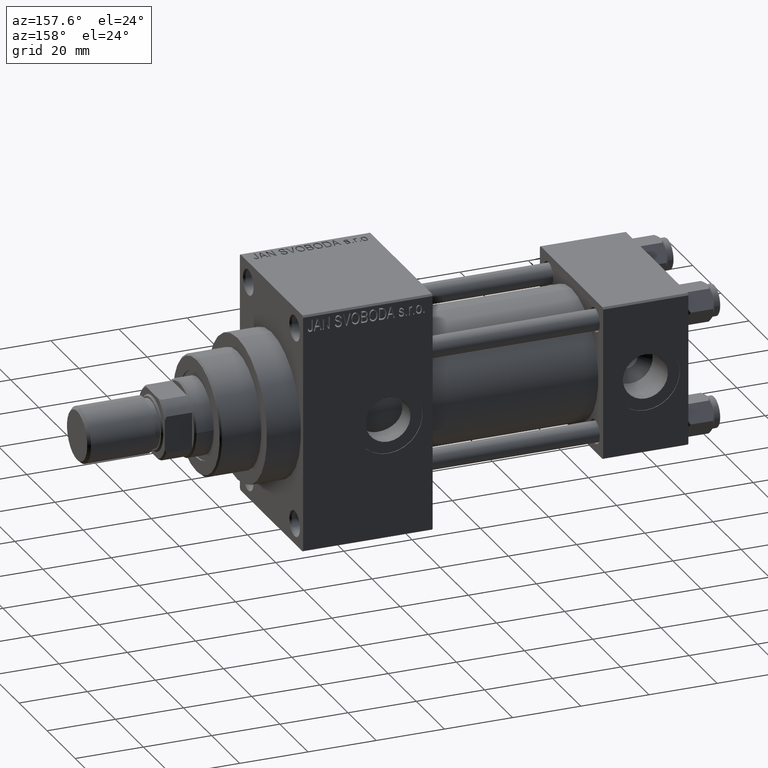
[diagram: clean part render]
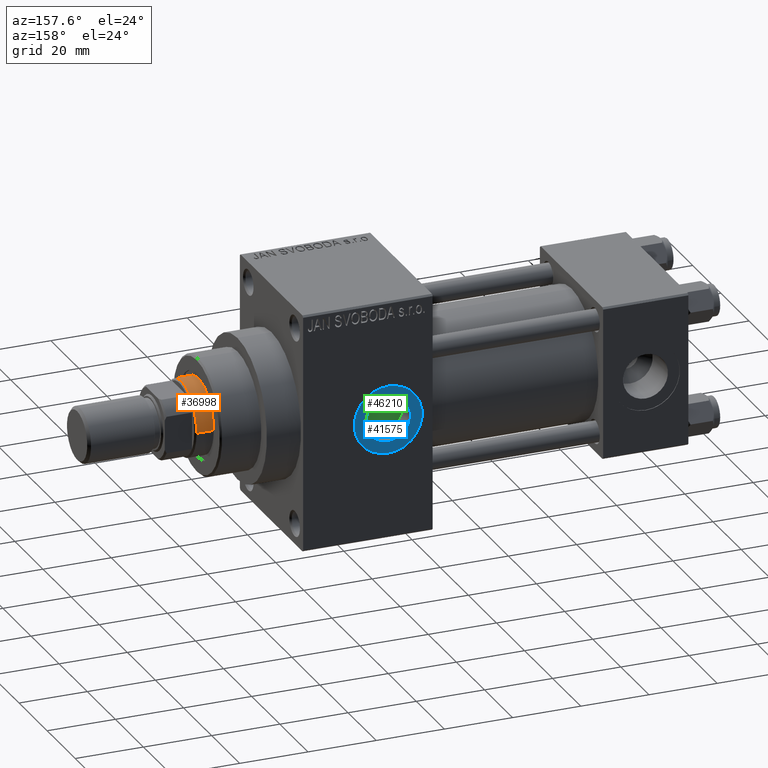
[diagram: same view with three faces highlighted in distinct colors, each labeled with its STEP entity id]
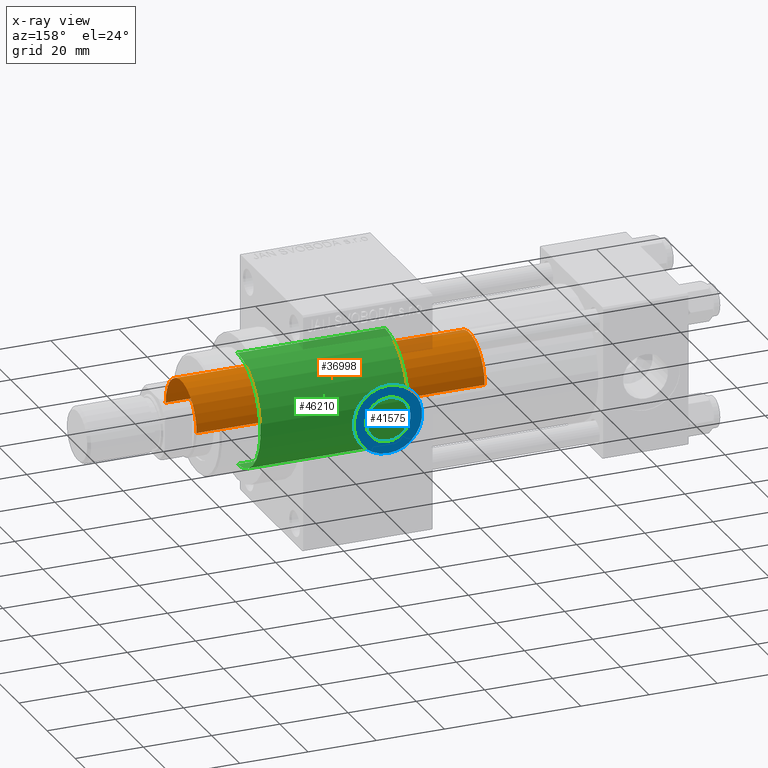
[diagram: x-ray of the same camera — body ghosted, the three highlighted faces saturated]
A machine part, auxiliary view with three faces highlighted in distinct colors.
The next image is the same camera in x-ray (body ghosted, the three faces saturated) — at least one of them is partly hidden behind the body in this view.
Their STEP definitions:

[orange] entity #36998 — the highlighted cylindrical surface (partial cylindrical patch) has radius 11 mm, axis along (-1, 0, 0).
#1453 = ORIENTED_EDGE ( 'NONE', *, *, #26147, .F. ) ;
#2389 = CARTESIAN_POINT ( 'NONE',  ( 0.000000000000000000, 0.000000000000000000, 115.0000000000000000 ) ) ;
#6100 = EDGE_CURVE ( 'NONE', #15013, #28930, #34857, .T. ) ;
#8218 = DIRECTION ( 'NONE',  ( 1.000000000000000000, 0.000000000000000000, 0.000000000000000000 ) ) ;
#9091 = CIRCLE ( 'NONE', #29094, 11.00000000000000000 ) ;
#9444 = VERTEX_POINT ( 'NONE', #28749 ) ;
#12684 = CARTESIAN_POINT ( 'NONE',  ( 11.00000000000000000, 1.347111479062088405E-15, 115.0000000000000000 ) ) ;
#13531 = AXIS2_PLACEMENT_3D ( 'NONE', #2389, #46916, #46676 ) ;
#15013 = VERTEX_POINT ( 'NONE', #41932 ) ;
#16005 = ORIENTED_EDGE ( 'NONE', *, *, #30554, .T. ) ;
#16176 = CIRCLE ( 'NONE', #23859, 11.00000000000000000 ) ;
#20673 = DIRECTION ( 'NONE',  ( 1.000000000000000000, 0.000000000000000000, 0.000000000000000000 ) ) ;
#22670 = DIRECTION ( 'NONE',  ( 0.000000000000000000, 0.000000000000000000, 1.000000000000000000 ) ) ;
#22859 = ORIENTED_EDGE ( 'NONE', *, *, #46298, .T. ) ;
#23859 = AXIS2_PLACEMENT_3D ( 'NONE', #33488, #22670, #8218 ) ;
#26147 = EDGE_CURVE ( 'NONE', #9444, #40365, #45904, .T. ) ;
#26273 = EDGE_LOOP ( 'NONE', ( #1453, #22859, #46473, #16005 ) ) ;
#27353 = DIRECTION ( 'NONE',  ( -0.000000000000000000, -0.000000000000000000, -1.000000000000000000 ) ) ;
#27386 = DIRECTION ( 'NONE',  ( -0.000000000000000000, -0.000000000000000000, -1.000000000000000000 ) ) ;
#27906 = CYLINDRICAL_SURFACE ( 'NONE', #13531, 11.00000000000000000 ) ;
#28749 = CARTESIAN_POINT ( 'NONE',  ( 11.00000000000000000, 1.347111479062088405E-15, 114.5000000000000142 ) ) ;
#28930 = VERTEX_POINT ( 'NONE', #39931 ) ;
#29094 = AXIS2_PLACEMENT_3D ( 'NONE', #30999, #38945, #20673 ) ;
#30554 = EDGE_CURVE ( 'NONE', #28930, #40365, #16176, .T. ) ;
#30999 = CARTESIAN_POINT ( 'NONE',  ( 0.000000000000000000, 0.000000000000000000, 114.5000000000000142 ) ) ;
#31747 = FACE_OUTER_BOUND ( 'NONE', #26273, .T. ) ;
#33488 = CARTESIAN_POINT ( 'NONE',  ( 0.000000000000000000, 0.000000000000000000, 30.00000000000000000 ) ) ;
#34472 = VECTOR ( 'NONE', #27353, 1000.000000000000000 ) ;
#34857 = LINE ( 'NONE', #46179, #38120 ) ;
#36998 = ADVANCED_FACE ( 'NONE', ( #31747 ), #27906, .T. ) ;
#38120 = VECTOR ( 'NONE', #27386, 1000.000000000000000 ) ;
#38945 = DIRECTION ( 'NONE',  ( 0.000000000000000000, 0.000000000000000000, -1.000000000000000000 ) ) ;
#39931 = CARTESIAN_POINT ( 'NONE',  ( -11.00000000000000000, 0.000000000000000000, 30.00000000000000000 ) ) ;
#40365 = VERTEX_POINT ( 'NONE', #45590 ) ;
#41932 = CARTESIAN_POINT ( 'NONE',  ( -11.00000000000000000, 0.000000000000000000, 114.5000000000000142 ) ) ;
#45590 = CARTESIAN_POINT ( 'NONE',  ( 11.00000000000000000, 1.347111479062088405E-15, 30.00000000000000000 ) ) ;
#45904 = LINE ( 'NONE', #12684, #34472 ) ;
#46179 = CARTESIAN_POINT ( 'NONE',  ( -11.00000000000000000, 0.000000000000000000, 115.0000000000000000 ) ) ;
#46298 = EDGE_CURVE ( 'NONE', #9444, #15013, #9091, .T. ) ;
#46473 = ORIENTED_EDGE ( 'NONE', *, *, #6100, .T. ) ;
#46676 = DIRECTION ( 'NONE',  ( -1.000000000000000000, 0.000000000000000000, 0.000000000000000000 ) ) ;
#46916 = DIRECTION ( 'NONE',  ( -0.000000000000000000, -0.000000000000000000, -1.000000000000000000 ) ) ;

[blue] entity #41575 — the highlighted planar face has unit normal (0, 1, 0).
#67 = EDGE_CURVE ( 'NONE', #35409, #16734, #8065, .T. ) ;
#2031 = ORIENTED_EDGE ( 'NONE', *, *, #28156, .T. ) ;
#3675 = ORIENTED_EDGE ( 'NONE', *, *, #15401, .F. ) ;
#8065 = CIRCLE ( 'NONE', #32663, 6.580000000000002736 ) ;
#8118 = ORIENTED_EDGE ( 'NONE', *, *, #46602, .T. ) ;
#9870 = CARTESIAN_POINT ( 'NONE',  ( 88.00000000000001421, 22.29999999999999716, 0.000000000000000000 ) ) ;
#10203 = DIRECTION ( 'NONE',  ( 0.000000000000000000, 0.000000000000000000, 1.000000000000000000 ) ) ;
#11079 = CARTESIAN_POINT ( 'NONE',  ( 88.00000000000001421, 22.29999999999999716, 9.999999999999994671 ) ) ;
#11175 = ORIENTED_EDGE ( 'NONE', *, *, #67, .F. ) ;
#12188 = DIRECTION ( 'NONE',  ( 0.000000000000000000, 0.000000000000000000, 1.000000000000000000 ) ) ;
#15401 = EDGE_CURVE ( 'NONE', #16734, #35409, #44983, .T. ) ;
#16734 = VERTEX_POINT ( 'NONE', #41282 ) ;
#17575 = FACE_OUTER_BOUND ( 'NONE', #19482, .T. ) ;
#19244 = VERTEX_POINT ( 'NONE', #32703 ) ;
#19482 = EDGE_LOOP ( 'NONE', ( #2031, #8118 ) ) ;
#23692 = VERTEX_POINT ( 'NONE', #11079 ) ;
#24315 = FACE_BOUND ( 'NONE', #28889, .T. ) ;
#28156 = EDGE_CURVE ( 'NONE', #23692, #19244, #44530, .T. ) ;
#28254 = DIRECTION ( 'NONE',  ( 0.000000000000000000, 1.000000000000000000, 0.000000000000000000 ) ) ;
#28889 = EDGE_LOOP ( 'NONE', ( #11175, #3675 ) ) ;
#29610 = AXIS2_PLACEMENT_3D ( 'NONE', #31187, #34805, #38667 ) ;
#30589 = AXIS2_PLACEMENT_3D ( 'NONE', #9870, #42601, #47156 ) ;
#31187 = CARTESIAN_POINT ( 'NONE',  ( 88.00000000000001421, 22.29999999999999716, 0.000000000000000000 ) ) ;
#32663 = AXIS2_PLACEMENT_3D ( 'NONE', #47024, #40497, #44109 ) ;
#32703 = CARTESIAN_POINT ( 'NONE',  ( 88.00000000000001421, 22.29999999999999716, -9.999999999999994671 ) ) ;
#32957 = CIRCLE ( 'NONE', #41423, 9.999999999999994671 ) ;
#34075 = DIRECTION ( 'NONE',  ( 0.000000000000000000, 1.000000000000000000, 0.000000000000000000 ) ) ;
#34805 = DIRECTION ( 'NONE',  ( 0.000000000000000000, 1.000000000000000000, 0.000000000000000000 ) ) ;
#35378 = PLANE ( 'NONE',  #30589 ) ;
#35409 = VERTEX_POINT ( 'NONE', #38940 ) ;
#35709 = CARTESIAN_POINT ( 'NONE',  ( 88.00000000000001421, 22.29999999999999716, 0.000000000000000000 ) ) ;
#38667 = DIRECTION ( 'NONE',  ( 0.000000000000000000, 0.000000000000000000, 1.000000000000000000 ) ) ;
#38940 = CARTESIAN_POINT ( 'NONE',  ( 88.00000000000001421, 22.29999999999999716, 6.580000000000002736 ) ) ;
#40497 = DIRECTION ( 'NONE',  ( 0.000000000000000000, 1.000000000000000000, 0.000000000000000000 ) ) ;
#41282 = CARTESIAN_POINT ( 'NONE',  ( 88.00000000000001421, 22.29999999999999716, -6.580000000000002736 ) ) ;
#41423 = AXIS2_PLACEMENT_3D ( 'NONE', #45629, #34075, #12188 ) ;
#41575 = ADVANCED_FACE ( 'NONE', ( #24315, #17575 ), #35378, .T. ) ;
#42601 = DIRECTION ( 'NONE',  ( 0.000000000000000000, 1.000000000000000000, 0.000000000000000000 ) ) ;
#44109 = DIRECTION ( 'NONE',  ( 0.000000000000000000, 0.000000000000000000, 1.000000000000000000 ) ) ;
#44530 = CIRCLE ( 'NONE', #46065, 9.999999999999994671 ) ;
#44983 = CIRCLE ( 'NONE', #29610, 6.580000000000002736 ) ;
#45629 = CARTESIAN_POINT ( 'NONE',  ( 88.00000000000001421, 22.29999999999999716, 0.000000000000000000 ) ) ;
#46065 = AXIS2_PLACEMENT_3D ( 'NONE', #35709, #28254, #10203 ) ;
#46602 = EDGE_CURVE ( 'NONE', #19244, #23692, #32957, .T. ) ;
#47024 = CARTESIAN_POINT ( 'NONE',  ( 88.00000000000001421, 22.29999999999999716, 0.000000000000000000 ) ) ;
#47156 = DIRECTION ( 'NONE',  ( 0.000000000000000000, -0.000000000000000000, 1.000000000000000000 ) ) ;

[green] entity #46210 — the highlighted cylindrical surface (partial cylindrical patch) has radius 16.5 mm, axis along (-1, 0, 0).
#161 = DIRECTION ( 'NONE',  ( -0.000000000000000000, -0.000000000000000000, -1.000000000000000000 ) ) ;
#218 = DIRECTION ( 'NONE',  ( -0.000000000000000000, -0.000000000000000000, -1.000000000000000000 ) ) ;
#2414 = EDGE_CURVE ( 'NONE', #44920, #25121, #14202, .T. ) ;
#3190 = ORIENTED_EDGE ( 'NONE', *, *, #13013, .T. ) ;
#4398 = AXIS2_PLACEMENT_3D ( 'NONE', #12076, #30348, #4606 ) ;
#4606 = DIRECTION ( 'NONE',  ( 1.000000000000000000, 0.000000000000000000, 0.000000000000000000 ) ) ;
#4761 = FACE_OUTER_BOUND ( 'NONE', #43126, .T. ) ;
#8277 = DIRECTION ( 'NONE',  ( -0.000000000000000000, -0.000000000000000000, -1.000000000000000000 ) ) ;
#9266 = VERTEX_POINT ( 'NONE', #36038 ) ;
#10048 = CARTESIAN_POINT ( 'NONE',  ( 16.50000000000000000, 2.020667218593133100E-15, 43.25999999999999801 ) ) ;
#12076 = CARTESIAN_POINT ( 'NONE',  ( 0.000000000000000000, 0.000000000000000000, 43.25999999999999801 ) ) ;
#12877 = VERTEX_POINT ( 'NONE', #40082 ) ;
#13013 = EDGE_CURVE ( 'NONE', #9266, #44920, #13035, .T. ) ;
#13035 = LINE ( 'NONE', #26563, #47223 ) ;
#13061 = ORIENTED_EDGE ( 'NONE', *, *, #2414, .T. ) ;
#14202 = CIRCLE ( 'NONE', #33383, 16.50000000000000000 ) ;
#14876 = CARTESIAN_POINT ( 'NONE',  ( 0.000000000000000000, 0.000000000000000000, 0.000000000000000000 ) ) ;
#18728 = DIRECTION ( 'NONE',  ( 1.000000000000000000, 0.000000000000000000, 0.000000000000000000 ) ) ;
#18753 = DIRECTION ( 'NONE',  ( -1.000000000000000000, 0.000000000000000000, 0.000000000000000000 ) ) ;
#22837 = CARTESIAN_POINT ( 'NONE',  ( 0.000000000000000000, 0.000000000000000000, 43.25999999999999801 ) ) ;
#24057 = ORIENTED_EDGE ( 'NONE', *, *, #35451, .F. ) ;
#24379 = EDGE_CURVE ( 'NONE', #9266, #12877, #36701, .T. ) ;
#25121 = VERTEX_POINT ( 'NONE', #42221 ) ;
#26152 = ORIENTED_EDGE ( 'NONE', *, *, #24379, .F. ) ;
#26563 = CARTESIAN_POINT ( 'NONE',  ( -16.50000000000000000, 0.000000000000000000, 43.25999999999999801 ) ) ;
#28334 = LINE ( 'NONE', #10048, #45497 ) ;
#30348 = DIRECTION ( 'NONE',  ( 0.000000000000000000, 0.000000000000000000, 1.000000000000000000 ) ) ;
#32889 = AXIS2_PLACEMENT_3D ( 'NONE', #22837, #218, #18753 ) ;
#33004 = CARTESIAN_POINT ( 'NONE',  ( -16.50000000000000000, 0.000000000000000000, 0.000000000000000000 ) ) ;
#33383 = AXIS2_PLACEMENT_3D ( 'NONE', #14876, #43285, #18728 ) ;
#35451 = EDGE_CURVE ( 'NONE', #12877, #25121, #28334, .T. ) ;
#36038 = CARTESIAN_POINT ( 'NONE',  ( -16.50000000000000000, 0.000000000000000000, 43.25999999999999801 ) ) ;
#36701 = CIRCLE ( 'NONE', #4398, 16.50000000000000000 ) ;
#40082 = CARTESIAN_POINT ( 'NONE',  ( 16.50000000000000000, 2.020667218593133100E-15, 43.25999999999999801 ) ) ;
#41115 = CYLINDRICAL_SURFACE ( 'NONE', #32889, 16.50000000000000000 ) ;
#42221 = CARTESIAN_POINT ( 'NONE',  ( 16.50000000000000000, 2.020667218593133100E-15, 0.000000000000000000 ) ) ;
#43126 = EDGE_LOOP ( 'NONE', ( #24057, #26152, #3190, #13061 ) ) ;
#43285 = DIRECTION ( 'NONE',  ( 0.000000000000000000, 0.000000000000000000, 1.000000000000000000 ) ) ;
#44920 = VERTEX_POINT ( 'NONE', #33004 ) ;
#45497 = VECTOR ( 'NONE', #161, 1000.000000000000000 ) ;
#46210 = ADVANCED_FACE ( 'NONE', ( #4761 ), #41115, .T. ) ;
#47223 = VECTOR ( 'NONE', #8277, 1000.000000000000000 ) ;